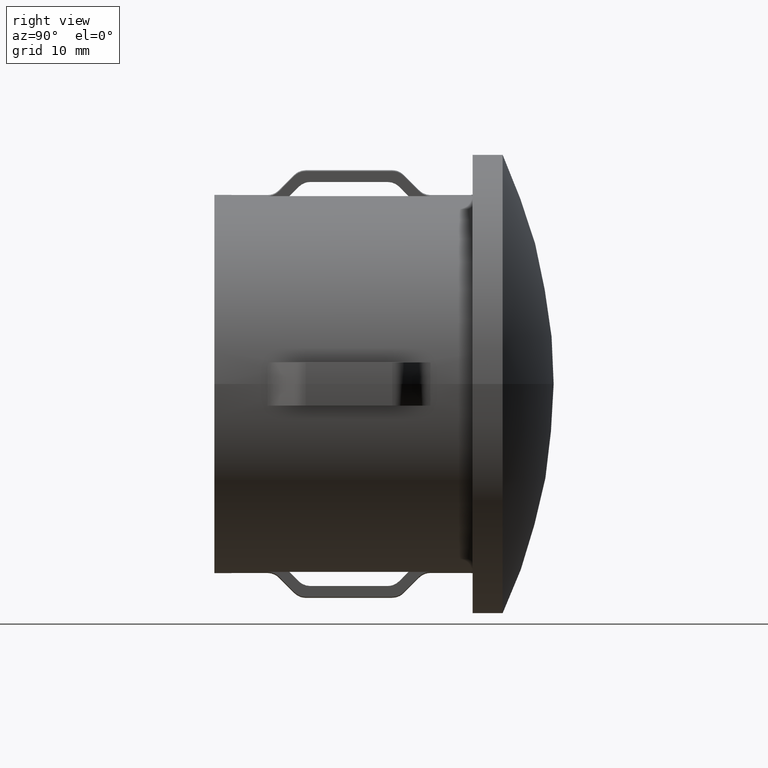
[diagram: clean part render]
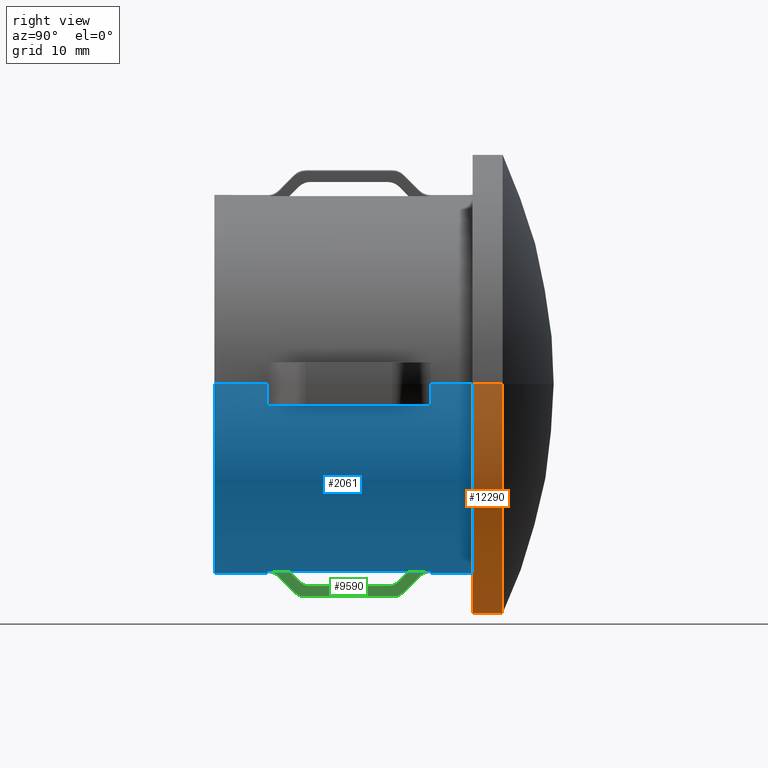
[diagram: same view with three faces highlighted in distinct colors, each labeled with its STEP entity id]
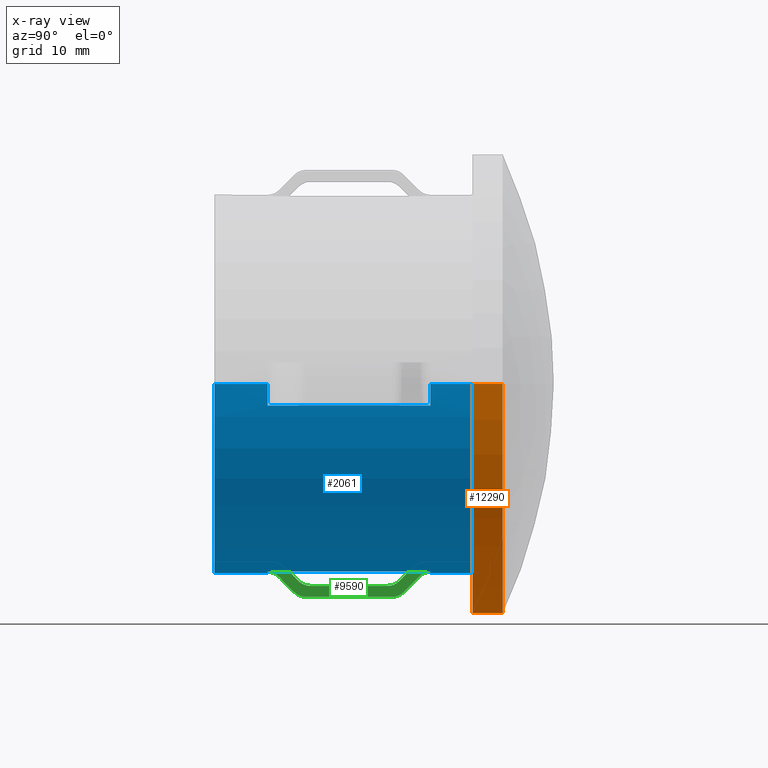
[diagram: x-ray of the same camera — body ghosted, the three highlighted faces saturated]
A machine part, right view with three faces highlighted in distinct colors.
The next image is the same camera in x-ray (body ghosted, the three faces saturated) — at least one of them is partly hidden behind the body in this view.
Their STEP definitions:

[orange] entity #12290 — the highlighted cylindrical surface (partial cylindrical patch) has radius 21.2 mm, axis along (-0, -1, -0).
#14 = VERTEX_POINT ( 'NONE', #12930 ) ;
#597 = DIRECTION ( 'NONE',  ( -2.904862207577519400E-015, -1.000000000000000000, -0.0000000000000000000 ) ) ;
#705 = DIRECTION ( 'NONE',  ( -2.904862207577519400E-015, -1.000000000000000000, -0.0000000000000000000 ) ) ;
#948 = ORIENTED_EDGE ( 'NONE', *, *, #11387, .F. ) ;
#1653 = ORIENTED_EDGE ( 'NONE', *, *, #2786, .T. ) ;
#1758 = VECTOR ( 'NONE', #11322, 1000.000000000000000 ) ;
#1781 = ORIENTED_EDGE ( 'NONE', *, *, #2001, .F. ) ;
#1859 = CARTESIAN_POINT ( 'NONE',  ( -21.20000000000001400, 28.90000000000005900, 2.596251214192390700E-015 ) ) ;
#2001 = EDGE_CURVE ( 'NONE', #13172, #9266, #14254, .T. ) ;
#2524 = DIRECTION ( 'NONE',  ( 1.000000000000000000, -2.945756845998349800E-015, 0.0000000000000000000 ) ) ;
#2532 = CIRCLE ( 'NONE', #10851, 21.20000000000001000 ) ;
#2786 = EDGE_CURVE ( 'NONE', #6906, #14, #2532, .T. ) ;
#3676 = LINE ( 'NONE', #1859, #4359 ) ;
#3825 = DIRECTION ( 'NONE',  ( -2.904862207577519400E-015, -1.000000000000000000, -0.0000000000000000000 ) ) ;
#4215 = CARTESIAN_POINT ( 'NONE',  ( -21.19999999999990000, 23.90658772472814800, 2.596251214192391900E-015 ) ) ;
#4359 = VECTOR ( 'NONE', #705, 1000.000000000000000 ) ;
#4437 = AXIS2_PLACEMENT_3D ( 'NONE', #4639, #10024, #2524 ) ;
#4639 = CARTESIAN_POINT ( 'NONE',  ( 0.0000000000000000000, 28.89999999999999500, 0.0000000000000000000 ) ) ;
#4826 = EDGE_CURVE ( 'NONE', #14, #9266, #9162, .T. ) ;
#6061 = CARTESIAN_POINT ( 'NONE',  ( -1.450517460529105200E-014, 23.90658772472808400, 0.0000000000000000000 ) ) ;
#6273 = CARTESIAN_POINT ( 'NONE',  ( -21.19999999999988600, 26.68310943387181300, 2.596251214192390300E-015 ) ) ;
#6906 = VERTEX_POINT ( 'NONE', #6273 ) ;
#7882 = ORIENTED_EDGE ( 'NONE', *, *, #4826, .T. ) ;
#8685 = EDGE_LOOP ( 'NONE', ( #948, #1653, #7882, #1781 ) ) ;
#9162 = LINE ( 'NONE', #10307, #1758 ) ;
#9223 = DIRECTION ( 'NONE',  ( 1.000000000000000000, -2.945756845998350200E-015, 0.0000000000000000000 ) ) ;
#9266 = VERTEX_POINT ( 'NONE', #9813 ) ;
#9813 = CARTESIAN_POINT ( 'NONE',  ( 21.20000000000001000, 23.90658772472802000, 0.0000000000000000000 ) ) ;
#10024 = DIRECTION ( 'NONE',  ( -2.904862207577519400E-015, -1.000000000000000000, -0.0000000000000000000 ) ) ;
#10307 = CARTESIAN_POINT ( 'NONE',  ( 21.20000000000001400, 28.89999999999993100, 0.0000000000000000000 ) ) ;
#10412 = CARTESIAN_POINT ( 'NONE',  ( -6.439761623881060800E-015, 26.68310943387175600, 0.0000000000000000000 ) ) ;
#10443 = DIRECTION ( 'NONE',  ( 1.000000000000000000, -2.945756845998349400E-015, 0.0000000000000000000 ) ) ;
#10851 = AXIS2_PLACEMENT_3D ( 'NONE', #10412, #3825, #9223 ) ;
#11050 = CYLINDRICAL_SURFACE ( 'NONE', #4437, 21.20000000000001400 ) ;
#11322 = DIRECTION ( 'NONE',  ( -2.904862207577519400E-015, -1.000000000000000000, -0.0000000000000000000 ) ) ;
#11387 = EDGE_CURVE ( 'NONE', #6906, #13172, #3676, .T. ) ;
#12204 = AXIS2_PLACEMENT_3D ( 'NONE', #6061, #597, #10443 ) ;
#12290 = ADVANCED_FACE ( 'NONE', ( #13977 ), #11050, .T. ) ;
#12930 = CARTESIAN_POINT ( 'NONE',  ( 21.20000000000000300, 26.68310943387169200, 0.0000000000000000000 ) ) ;
#13172 = VERTEX_POINT ( 'NONE', #4215 ) ;
#13977 = FACE_OUTER_BOUND ( 'NONE', #8685, .T. ) ;
#14254 = CIRCLE ( 'NONE', #12204, 21.20000000000001700 ) ;

[blue] entity #2061 — the highlighted cylindrical surface (partial cylindrical patch) has radius 17.5 mm, axis along (-0, -1, -0).
#53 = EDGE_CURVE ( 'NONE', #2744, #3036, #2293, .T. ) ;
#281 = CARTESIAN_POINT ( 'NONE',  ( -17.38533865071388000, 4.914718625761423700, -2.000000000000005800 ) ) ;
#439 = CARTESIAN_POINT ( 'NONE',  ( 2.000000000000001300, 4.914718625761423700, -17.38533865071378400 ) ) ;
#487 = EDGE_CURVE ( 'NONE', #1915, #695, #4869, .T. ) ;
#521 = EDGE_CURVE ( 'NONE', #2857, #12632, #8651, .T. ) ;
#695 = VERTEX_POINT ( 'NONE', #13203 ) ;
#732 = VECTOR ( 'NONE', #6707, 1000.000000000000000 ) ;
#752 = CARTESIAN_POINT ( 'NONE',  ( -17.50000000000014200, 4.914718625761526700, 2.143131898507881300E-015 ) ) ;
#776 = DIRECTION ( 'NONE',  ( -2.449293598294745400E-017, -1.000000000000000000, -0.0000000000000000000 ) ) ;
#879 = DIRECTION ( 'NONE',  ( -2.904862207577519400E-015, -1.000000000000000000, -0.0000000000000000000 ) ) ;
#965 = DIRECTION ( 'NONE',  ( 1.000000000000000000, -2.904862207577519400E-015, 0.0000000000000000000 ) ) ;
#1030 = CARTESIAN_POINT ( 'NONE',  ( 17.38533865071371300, 20.00000000000000000, -2.000000000000006200 ) ) ;
#1159 = VERTEX_POINT ( 'NONE', #9234 ) ;
#1271 = EDGE_CURVE ( 'NONE', #1365, #10079, #7248, .T. ) ;
#1320 = CIRCLE ( 'NONE', #7006, 17.50000000000007100 ) ;
#1342 = AXIS2_PLACEMENT_3D ( 'NONE', #7775, #8730, #5547 ) ;
#1365 = VERTEX_POINT ( 'NONE', #10041 ) ;
#1431 = LINE ( 'NONE', #13343, #732 ) ;
#1540 = ORIENTED_EDGE ( 'NONE', *, *, #13140, .T. ) ;
#1617 = CARTESIAN_POINT ( 'NONE',  ( 2.000000000000001800, 20.00000000000000000, -17.38533865071378400 ) ) ;
#1662 = ORIENTED_EDGE ( 'NONE', *, *, #5024, .F. ) ;
#1713 = EDGE_CURVE ( 'NONE', #3448, #3152, #8899, .T. ) ;
#1741 = LINE ( 'NONE', #8511, #3289 ) ;
#1883 = VERTEX_POINT ( 'NONE', #8430 ) ;
#1915 = VERTEX_POINT ( 'NONE', #1987 ) ;
#1916 = DIRECTION ( 'NONE',  ( -2.449293598294745400E-017, -1.000000000000000000, 0.0000000000000000000 ) ) ;
#1936 = DIRECTION ( 'NONE',  ( 1.000000000000000000, -2.973811673103095000E-015, 0.0000000000000000000 ) ) ;
#1941 = VECTOR ( 'NONE', #6380, 1000.000000000000000 ) ;
#1979 = CARTESIAN_POINT ( 'NONE',  ( -1.999999999999997300, 20.00000000000000000, -17.38533865071380500 ) ) ;
#1987 = CARTESIAN_POINT ( 'NONE',  ( -1.999999999999997300, 20.00000000000000000, -17.38533865071380500 ) ) ;
#2061 = ADVANCED_FACE ( 'NONE', ( #4085, #11471 ), #11987, .T. ) ;
#2286 = LINE ( 'NONE', #12194, #5886 ) ;
#2293 = LINE ( 'NONE', #1979, #6049 ) ;
#2356 = VERTEX_POINT ( 'NONE', #281 ) ;
#2466 = LINE ( 'NONE', #1030, #12261 ) ;
#2564 = DIRECTION ( 'NONE',  ( -2.449293598294745400E-017, -1.000000000000000000, 0.0000000000000000000 ) ) ;
#2579 = AXIS2_PLACEMENT_3D ( 'NONE', #3982, #6187, #8369 ) ;
#2602 = CARTESIAN_POINT ( 'NONE',  ( -17.38533865071388000, 20.00000000000000000, -2.000000000000005800 ) ) ;
#2606 = VECTOR ( 'NONE', #1916, 1000.000000000000000 ) ;
#2609 = CARTESIAN_POINT ( 'NONE',  ( -6.967393740213846900E-014, 4.914718625761476100, 0.0000000000000000000 ) ) ;
#2744 = VERTEX_POINT ( 'NONE', #3648 ) ;
#2856 = EDGE_CURVE ( 'NONE', #10079, #1159, #8727, .T. ) ;
#2857 = VERTEX_POINT ( 'NONE', #13645 ) ;
#2919 = VERTEX_POINT ( 'NONE', #752 ) ;
#3025 = CARTESIAN_POINT ( 'NONE',  ( 17.50000000000000000, 1.206615646697376900E-015, 0.0000000000000000000 ) ) ;
#3036 = VERTEX_POINT ( 'NONE', #14222 ) ;
#3105 = CARTESIAN_POINT ( 'NONE',  ( -8.395051779899014400E-014, 5.204170427930421300E-014, 0.0000000000000000000 ) ) ;
#3152 = VERTEX_POINT ( 'NONE', #6853 ) ;
#3273 = EDGE_CURVE ( 'NONE', #6647, #2857, #1320, .T. ) ;
#3289 = VECTOR ( 'NONE', #13894, 1000.000000000000000 ) ;
#3448 = VERTEX_POINT ( 'NONE', #7069 ) ;
#3559 = EDGE_CURVE ( 'NONE', #11614, #14031, #13866, .T. ) ;
#3568 = AXIS2_PLACEMENT_3D ( 'NONE', #3927, #13830, #6128 ) ;
#3648 = CARTESIAN_POINT ( 'NONE',  ( -1.999999999999997800, 6.950252531694237800, -17.38533865071380500 ) ) ;
#3721 = DIRECTION ( 'NONE',  ( 1.000000000000000000, -2.924248145218034500E-015, 0.0000000000000000000 ) ) ;
#3796 = ORIENTED_EDGE ( 'NONE', *, *, #1713, .F. ) ;
#3838 = VECTOR ( 'NONE', #2564, 1000.000000000000000 ) ;
#3843 = CIRCLE ( 'NONE', #3568, 17.50000000000000400 ) ;
#3927 = CARTESIAN_POINT ( 'NONE',  ( -9.705713025142736400E-015, 25.55880433163928700, 0.0000000000000000000 ) ) ;
#3981 = CARTESIAN_POINT ( 'NONE',  ( 2.000000000000001800, 20.00000000000000000, -17.38533865071378400 ) ) ;
#3982 = CARTESIAN_POINT ( 'NONE',  ( -2.585327364743976200E-014, 20.00000000000005300, 0.0000000000000000000 ) ) ;
#4085 = FACE_OUTER_BOUND ( 'NONE', #6709, .T. ) ;
#4111 = EDGE_CURVE ( 'NONE', #2919, #1883, #2286, .T. ) ;
#4146 = DIRECTION ( 'NONE',  ( -2.904862207577519400E-015, -1.000000000000000000, -0.0000000000000000000 ) ) ;
#4192 = ORIENTED_EDGE ( 'NONE', *, *, #8361, .F. ) ;
#4238 = CIRCLE ( 'NONE', #14102, 17.50000000000008500 ) ;
#4439 = DIRECTION ( 'NONE',  ( -2.449293598294745400E-017, -1.000000000000000000, -0.0000000000000000000 ) ) ;
#4465 = EDGE_CURVE ( 'NONE', #14064, #2356, #10706, .T. ) ;
#4541 = ORIENTED_EDGE ( 'NONE', *, *, #10116, .T. ) ;
#4575 = EDGE_CURVE ( 'NONE', #1159, #7571, #1431, .T. ) ;
#4720 = CARTESIAN_POINT ( 'NONE',  ( 17.50000000000007800, 28.89999999999994200, 0.0000000000000000000 ) ) ;
#4792 = AXIS2_PLACEMENT_3D ( 'NONE', #5349, #879, #14204 ) ;
#4869 = LINE ( 'NONE', #6230, #1941 ) ;
#5024 = EDGE_CURVE ( 'NONE', #3152, #9989, #1741, .T. ) ;
#5075 = DIRECTION ( 'NONE',  ( -2.904862207577519400E-015, -1.000000000000000000, -0.0000000000000000000 ) ) ;
#5250 = ORIENTED_EDGE ( 'NONE', *, *, #3273, .T. ) ;
#5349 = CARTESIAN_POINT ( 'NONE',  ( -6.967393740213846900E-014, 4.914718625761476100, 0.0000000000000000000 ) ) ;
#5400 = VECTOR ( 'NONE', #6001, 1000.000000000000000 ) ;
#5536 = LINE ( 'NONE', #9458, #2606 ) ;
#5547 = DIRECTION ( 'NONE',  ( 1.000000000000000000, -2.924248145218034500E-015, 0.0000000000000000000 ) ) ;
#5615 = DIRECTION ( 'NONE',  ( -2.904862207577519400E-015, -1.000000000000000000, -0.0000000000000000000 ) ) ;
#5701 = CARTESIAN_POINT ( 'NONE',  ( 17.38533865071371300, 20.00000000000000000, -2.000000000000006200 ) ) ;
#5722 = DIRECTION ( 'NONE',  ( -2.904862207577519400E-015, -1.000000000000000000, -0.0000000000000000000 ) ) ;
#5846 = ORIENTED_EDGE ( 'NONE', *, *, #6336, .F. ) ;
#5886 = VECTOR ( 'NONE', #5615, 1000.000000000000000 ) ;
#6001 = DIRECTION ( 'NONE',  ( -2.904862207577519400E-015, -1.000000000000000000, -0.0000000000000000000 ) ) ;
#6006 = ORIENTED_EDGE ( 'NONE', *, *, #8165, .T. ) ;
#6040 = VECTOR ( 'NONE', #6430, 1000.000000000000000 ) ;
#6049 = VECTOR ( 'NONE', #776, 1000.000000000000000 ) ;
#6128 = DIRECTION ( 'NONE',  ( 1.000000000000000000, -2.973811673103097400E-015, 0.0000000000000000000 ) ) ;
#6187 = DIRECTION ( 'NONE',  ( -2.904862207577519400E-015, -1.000000000000000000, -0.0000000000000000000 ) ) ;
#6225 = LINE ( 'NONE', #7228, #8819 ) ;
#6230 = CARTESIAN_POINT ( 'NONE',  ( -1.999999999999997300, 20.00000000000000000, -17.38533865071380500 ) ) ;
#6336 = EDGE_CURVE ( 'NONE', #1915, #1365, #9218, .T. ) ;
#6380 = DIRECTION ( 'NONE',  ( -2.449293598294745400E-017, -1.000000000000000000, -0.0000000000000000000 ) ) ;
#6430 = DIRECTION ( 'NONE',  ( -2.449293598294745400E-017, -1.000000000000000000, 0.0000000000000000000 ) ) ;
#6518 = ORIENTED_EDGE ( 'NONE', *, *, #11111, .F. ) ;
#6524 = ORIENTED_EDGE ( 'NONE', *, *, #11568, .T. ) ;
#6581 = CARTESIAN_POINT ( 'NONE',  ( 2.000000000000001800, 17.96446609406721300, -17.38533865071378400 ) ) ;
#6647 = VERTEX_POINT ( 'NONE', #8098 ) ;
#6707 = DIRECTION ( 'NONE',  ( -2.449293598294745400E-017, -1.000000000000000000, -0.0000000000000000000 ) ) ;
#6709 = EDGE_LOOP ( 'NONE', ( #4192, #4541, #9160, #9441, #9640, #12988, #10571, #5250, #8250, #6518, #10823, #6006, #11776, #9175, #1662, #3796 ) ) ;
#6853 = CARTESIAN_POINT ( 'NONE',  ( -17.38533865071375200, 20.00000000000010300, -2.000000000000006200 ) ) ;
#6876 = VERTEX_POINT ( 'NONE', #9807 ) ;
#6944 = DIRECTION ( 'NONE',  ( -2.904862207577519400E-015, -1.000000000000000000, -0.0000000000000000000 ) ) ;
#6961 = LINE ( 'NONE', #5701, #8000 ) ;
#7006 = AXIS2_PLACEMENT_3D ( 'NONE', #2609, #6944, #3721 ) ;
#7069 = CARTESIAN_POINT ( 'NONE',  ( -17.50000000000004300, 20.00000000000010300, 2.143131898507875000E-015 ) ) ;
#7228 = CARTESIAN_POINT ( 'NONE',  ( 17.50000000000007800, 28.89999999999994200, 0.0000000000000000000 ) ) ;
#7248 = LINE ( 'NONE', #3981, #10868 ) ;
#7331 = CARTESIAN_POINT ( 'NONE',  ( 0.0000000000000000000, 28.89999999999999500, 0.0000000000000000000 ) ) ;
#7376 = CARTESIAN_POINT ( 'NONE',  ( -2.585327364743976200E-014, 20.00000000000005300, 0.0000000000000000000 ) ) ;
#7402 = DIRECTION ( 'NONE',  ( -2.449293598294745400E-017, -1.000000000000000000, -0.0000000000000000000 ) ) ;
#7571 = VERTEX_POINT ( 'NONE', #439 ) ;
#7775 = CARTESIAN_POINT ( 'NONE',  ( -6.967393740213846900E-014, 4.914718625761476100, 0.0000000000000000000 ) ) ;
#7799 = VECTOR ( 'NONE', #14270, 1000.000000000000000 ) ;
#7833 = LINE ( 'NONE', #2602, #3838 ) ;
#7914 = EDGE_LOOP ( 'NONE', ( #9395, #6524, #12945, #11916, #10432, #5846, #11066, #1540 ) ) ;
#8000 = VECTOR ( 'NONE', #11177, 1000.000000000000000 ) ;
#8098 = CARTESIAN_POINT ( 'NONE',  ( 17.38533865071371300, 4.914718625761423700, -2.000000000000006200 ) ) ;
#8165 = EDGE_CURVE ( 'NONE', #2919, #2356, #11262, .T. ) ;
#8172 = VERTEX_POINT ( 'NONE', #14217 ) ;
#8250 = ORIENTED_EDGE ( 'NONE', *, *, #521, .T. ) ;
#8324 = EDGE_CURVE ( 'NONE', #9989, #14064, #7833, .T. ) ;
#8361 = EDGE_CURVE ( 'NONE', #6876, #3448, #10217, .T. ) ;
#8369 = DIRECTION ( 'NONE',  ( 1.000000000000000000, -2.973811673103095000E-015, 0.0000000000000000000 ) ) ;
#8430 = CARTESIAN_POINT ( 'NONE',  ( -17.50000000000016700, 1.028767929119110500E-013, 2.143131898507882800E-015 ) ) ;
#8511 = CARTESIAN_POINT ( 'NONE',  ( -17.38533865071388000, 20.00000000000000000, -2.000000000000005800 ) ) ;
#8587 = CARTESIAN_POINT ( 'NONE',  ( -17.38533865071388000, 20.00000000000000000, -2.000000000000005800 ) ) ;
#8605 = DIRECTION ( 'NONE',  ( -2.904862207577519400E-015, -1.000000000000000000, -0.0000000000000000000 ) ) ;
#8651 = LINE ( 'NONE', #4720, #12431 ) ;
#8718 = CARTESIAN_POINT ( 'NONE',  ( 17.38533865071371300, 20.00000000000000000, -2.000000000000006200 ) ) ;
#8727 = LINE ( 'NONE', #1617, #12491 ) ;
#8730 = DIRECTION ( 'NONE',  ( -2.904862207577519400E-015, -1.000000000000000000, -0.0000000000000000000 ) ) ;
#8804 = AXIS2_PLACEMENT_3D ( 'NONE', #12803, #5075, #10644 ) ;
#8819 = VECTOR ( 'NONE', #9396, 1000.000000000000000 ) ;
#8899 = CIRCLE ( 'NONE', #8804, 17.50000000000001800 ) ;
#9160 = ORIENTED_EDGE ( 'NONE', *, *, #12008, .T. ) ;
#9175 = ORIENTED_EDGE ( 'NONE', *, *, #8324, .F. ) ;
#9218 = CIRCLE ( 'NONE', #9658, 17.50000000000001800 ) ;
#9234 = CARTESIAN_POINT ( 'NONE',  ( 2.000000000000001300, 6.950252531694277800, -17.38533865071378400 ) ) ;
#9395 = ORIENTED_EDGE ( 'NONE', *, *, #53, .T. ) ;
#9396 = DIRECTION ( 'NONE',  ( -2.904862207577519400E-015, -1.000000000000000000, -0.0000000000000000000 ) ) ;
#9441 = ORIENTED_EDGE ( 'NONE', *, *, #3559, .F. ) ;
#9458 = CARTESIAN_POINT ( 'NONE',  ( 17.38533865071371300, 20.00000000000000000, -2.000000000000006200 ) ) ;
#9541 = EDGE_CURVE ( 'NONE', #11614, #11843, #6961, .T. ) ;
#9640 = ORIENTED_EDGE ( 'NONE', *, *, #9541, .T. ) ;
#9658 = AXIS2_PLACEMENT_3D ( 'NONE', #7376, #4146, #1936 ) ;
#9807 = CARTESIAN_POINT ( 'NONE',  ( -17.50000000000001400, 25.55880433163933700, 2.369691556350132100E-015 ) ) ;
#9989 = VERTEX_POINT ( 'NONE', #13851 ) ;
#10041 = CARTESIAN_POINT ( 'NONE',  ( 2.000000000000002700, 20.00000000000004600, -17.38533865071372700 ) ) ;
#10079 = VERTEX_POINT ( 'NONE', #6581 ) ;
#10116 = EDGE_CURVE ( 'NONE', #6876, #12904, #3843, .T. ) ;
#10217 = LINE ( 'NONE', #13575, #5400 ) ;
#10328 = DIRECTION ( 'NONE',  ( -2.449293598294745400E-017, -1.000000000000000000, 0.0000000000000000000 ) ) ;
#10432 = ORIENTED_EDGE ( 'NONE', *, *, #1271, .F. ) ;
#10571 = ORIENTED_EDGE ( 'NONE', *, *, #10740, .T. ) ;
#10644 = DIRECTION ( 'NONE',  ( 1.000000000000000000, -2.973811673103095000E-015, 0.0000000000000000000 ) ) ;
#10706 = LINE ( 'NONE', #8587, #7799 ) ;
#10740 = EDGE_CURVE ( 'NONE', #8172, #6647, #2466, .T. ) ;
#10823 = ORIENTED_EDGE ( 'NONE', *, *, #4111, .F. ) ;
#10868 = VECTOR ( 'NONE', #7402, 1000.000000000000000 ) ;
#11066 = ORIENTED_EDGE ( 'NONE', *, *, #487, .T. ) ;
#11111 = EDGE_CURVE ( 'NONE', #1883, #12632, #4238, .T. ) ;
#11177 = DIRECTION ( 'NONE',  ( -2.449293598294745400E-017, -1.000000000000000000, -0.0000000000000000000 ) ) ;
#11262 = CIRCLE ( 'NONE', #1342, 17.50000000000007100 ) ;
#11326 = AXIS2_PLACEMENT_3D ( 'NONE', #7331, #12691, #13814 ) ;
#11471 = FACE_BOUND ( 'NONE', #7914, .T. ) ;
#11568 = EDGE_CURVE ( 'NONE', #3036, #7571, #12946, .T. ) ;
#11614 = VERTEX_POINT ( 'NONE', #8718 ) ;
#11776 = ORIENTED_EDGE ( 'NONE', *, *, #4465, .F. ) ;
#11843 = VERTEX_POINT ( 'NONE', #12147 ) ;
#11916 = ORIENTED_EDGE ( 'NONE', *, *, #2856, .F. ) ;
#11947 = CARTESIAN_POINT ( 'NONE',  ( 17.49999999999999600, 20.00000000000000000, 0.0000000000000000000 ) ) ;
#11987 = CYLINDRICAL_SURFACE ( 'NONE', #11326, 17.50000000000007800 ) ;
#12008 = EDGE_CURVE ( 'NONE', #12904, #14031, #6225, .T. ) ;
#12147 = CARTESIAN_POINT ( 'NONE',  ( 17.38533865071371300, 17.96446609406726600, -2.000000000000006200 ) ) ;
#12194 = CARTESIAN_POINT ( 'NONE',  ( -17.50000000000007800, 28.90000000000004800, 2.143131898507877700E-015 ) ) ;
#12261 = VECTOR ( 'NONE', #4439, 1000.000000000000000 ) ;
#12431 = VECTOR ( 'NONE', #5722, 1000.000000000000000 ) ;
#12491 = VECTOR ( 'NONE', #10328, 1000.000000000000000 ) ;
#12632 = VERTEX_POINT ( 'NONE', #3025 ) ;
#12691 = DIRECTION ( 'NONE',  ( -2.904862207577519400E-015, -1.000000000000000000, -0.0000000000000000000 ) ) ;
#12803 = CARTESIAN_POINT ( 'NONE',  ( -2.585327364743976200E-014, 20.00000000000005300, 0.0000000000000000000 ) ) ;
#12904 = VERTEX_POINT ( 'NONE', #13603 ) ;
#12945 = ORIENTED_EDGE ( 'NONE', *, *, #4575, .F. ) ;
#12946 = CIRCLE ( 'NONE', #4792, 17.50000000000007100 ) ;
#12988 = ORIENTED_EDGE ( 'NONE', *, *, #13901, .T. ) ;
#13140 = EDGE_CURVE ( 'NONE', #695, #2744, #13454, .T. ) ;
#13203 = CARTESIAN_POINT ( 'NONE',  ( -1.999999999999997300, 17.96446609406726600, -17.38533865071380500 ) ) ;
#13304 = CARTESIAN_POINT ( 'NONE',  ( -17.38533865071388000, 6.950252531694277800, -2.000000000000005800 ) ) ;
#13343 = CARTESIAN_POINT ( 'NONE',  ( 2.000000000000001800, 20.00000000000000000, -17.38533865071378400 ) ) ;
#13454 = LINE ( 'NONE', #14082, #6040 ) ;
#13575 = CARTESIAN_POINT ( 'NONE',  ( -17.50000000000007800, 28.90000000000004800, 2.143131898507877700E-015 ) ) ;
#13603 = CARTESIAN_POINT ( 'NONE',  ( 17.49999999999999600, 25.55880433163923400, 0.0000000000000000000 ) ) ;
#13645 = CARTESIAN_POINT ( 'NONE',  ( 17.50000000000000000, 4.914718625761424600, 0.0000000000000000000 ) ) ;
#13814 = DIRECTION ( 'NONE',  ( 1.000000000000000000, -2.973811673103084700E-015, 0.0000000000000000000 ) ) ;
#13830 = DIRECTION ( 'NONE',  ( -2.904862207577519400E-015, -1.000000000000000000, -0.0000000000000000000 ) ) ;
#13851 = CARTESIAN_POINT ( 'NONE',  ( -17.38533865071388000, 17.96446609406721300, -2.000000000000005800 ) ) ;
#13866 = CIRCLE ( 'NONE', #2579, 17.50000000000001800 ) ;
#13894 = DIRECTION ( 'NONE',  ( -2.449293598294745400E-017, -1.000000000000000000, -0.0000000000000000000 ) ) ;
#13901 = EDGE_CURVE ( 'NONE', #11843, #8172, #5536, .T. ) ;
#14031 = VERTEX_POINT ( 'NONE', #11947 ) ;
#14064 = VERTEX_POINT ( 'NONE', #13304 ) ;
#14082 = CARTESIAN_POINT ( 'NONE',  ( -1.999999999999997300, 20.00000000000000000, -17.38533865071380500 ) ) ;
#14102 = AXIS2_PLACEMENT_3D ( 'NONE', #3105, #8605, #965 ) ;
#14204 = DIRECTION ( 'NONE',  ( 1.000000000000000000, -2.924248145218034500E-015, 0.0000000000000000000 ) ) ;
#14217 = CARTESIAN_POINT ( 'NONE',  ( 17.38533865071371300, 6.950252531694160600, -2.000000000000006200 ) ) ;
#14222 = CARTESIAN_POINT ( 'NONE',  ( -1.999999999999997800, 4.914718625761423700, -17.38533865071380500 ) ) ;
#14270 = DIRECTION ( 'NONE',  ( -2.449293598294745400E-017, -1.000000000000000000, -0.0000000000000000000 ) ) ;

[green] entity #9590 — the highlighted planar face has unit normal (-1, 0, -0).
#13 = CARTESIAN_POINT ( 'NONE',  ( 2.000000000000001300, 6.986305481410751900, -17.42162938008726800 ) ) ;
#15 = CARTESIAN_POINT ( 'NONE',  ( 2.000000000000002700, 20.00000000000004600, -17.38533865071372700 ) ) ;
#51 = CARTESIAN_POINT ( 'NONE',  ( 2.000000000000001300, 6.950252531694277800, -17.38533865071378400 ) ) ;
#143 = EDGE_CURVE ( 'NONE', #7345, #8681, #12741, .T. ) ;
#169 = CARTESIAN_POINT ( 'NONE',  ( 2.000000000000001300, 5.307255492531319300, -17.42454143816081900 ) ) ;
#198 = DIRECTION ( 'NONE',  ( -2.449293598294745400E-017, -1.000000000000000000, -0.0000000000000000000 ) ) ;
#365 = CARTESIAN_POINT ( 'NONE',  ( 2.000000000000001800, 5.111921298075495600, -17.38533865071376600 ) ) ;
#439 = CARTESIAN_POINT ( 'NONE',  ( 2.000000000000001300, 4.914718625761423700, -17.38533865071378400 ) ) ;
#489 = CARTESIAN_POINT ( 'NONE',  ( 2.000000000000001800, 7.396699141100938000, -19.25708083503685200 ) ) ;
#623 = CARTESIAN_POINT ( 'NONE',  ( 2.000000000000001300, 16.23845352864968200, -18.69331431287670900 ) ) ;
#650 = CARTESIAN_POINT ( 'NONE',  ( 2.000000000000001800, 8.457359312880761600, -19.69873092359004800 ) ) ;
#732 = VECTOR ( 'NONE', #6707, 1000.000000000000000 ) ;
#795 = VERTEX_POINT ( 'NONE', #4323 ) ;
#803 = CARTESIAN_POINT ( 'NONE',  ( 2.000000000000002200, 16.45735931288071200, -19.69873092359004800 ) ) ;
#886 = CARTESIAN_POINT ( 'NONE',  ( 2.000000000000001300, 7.949531508099165800, -18.39085515632347500 ) ) ;
#895 = CARTESIAN_POINT ( 'NONE',  ( 2.000000000000001800, 17.51801948466578600, -19.25708083504088100 ) ) ;
#1025 = B_SPLINE_CURVE_WITH_KNOTS ( 'NONE', 3,
 ( #5477, #4367, #13174, #6576, #12048, #15 ),
 .UNSPECIFIED., .F., .F.,
 ( 4, 2, 4 ),
 ( 0.009288462586615847000, 0.009874882560755866800, 0.01046130253489588500 ),
 .UNSPECIFIED. ) ;
#1068 = CARTESIAN_POINT ( 'NONE',  ( 2.000000000000001300, 8.064259311178721700, -19.65921881202385200 ) ) ;
#1104 = EDGE_CURVE ( 'NONE', #7571, #10840, #4912, .T. ) ;
#1125 = ORIENTED_EDGE ( 'NONE', *, *, #5288, .T. ) ;
#1159 = VERTEX_POINT ( 'NONE', #9234 ) ;
#1220 = CARTESIAN_POINT ( 'NONE',  ( 2.000000000000001800, 17.51801948466578600, -19.25708083504088100 ) ) ;
#1270 = EDGE_CURVE ( 'NONE', #1555, #12475, #8280, .T. ) ;
#1271 = EDGE_CURVE ( 'NONE', #1365, #10079, #7248, .T. ) ;
#1298 = CARTESIAN_POINT ( 'NONE',  ( 2.000000000000001300, 7.058413593263120200, -17.49420864086609500 ) ) ;
#1317 = CARTESIAN_POINT ( 'NONE',  ( 2.000000000000001300, 5.975378797541287300, -17.82750440954563200 ) ) ;
#1365 = VERTEX_POINT ( 'NONE', #10041 ) ;
#1431 = LINE ( 'NONE', #13343, #732 ) ;
#1469 = B_SPLINE_CURVE_WITH_KNOTS ( 'NONE', 3,
 ( #3760, #9323, #5871, #4778, #8107, #12583, #489 ),
 .UNSPECIFIED., .F., .F.,
 ( 4, 3, 4 ),
 ( 0.003840700187215000700, 0.004653157968243741900, 0.005856596785993221400 ),
 .UNSPECIFIED. ) ;
#1477 = CARTESIAN_POINT ( 'NONE',  ( 1.999999999999999100, 20.00000000000000000, 2.940420107180653000E-016 ) ) ;
#1491 = ORIENTED_EDGE ( 'NONE', *, *, #1104, .T. ) ;
#1516 = PLANE ( 'NONE',  #13698 ) ;
#1555 = VERTEX_POINT ( 'NONE', #2619 ) ;
#1561 = LINE ( 'NONE', #12091, #11700 ) ;
#1709 = EDGE_CURVE ( 'NONE', #10814, #9575, #3683, .T. ) ;
#1821 = CARTESIAN_POINT ( 'NONE',  ( 2.000000000000001800, 16.65527531074436900, -19.69873092359001300 ) ) ;
#1950 = CARTESIAN_POINT ( 'NONE',  ( 2.000000000000001800, 17.60081102466014300, -19.17384397869496100 ) ) ;
#1969 = B_SPLINE_CURVE_WITH_KNOTS ( 'NONE', 3,
 ( #12240, #8884, #6770, #1298, #11144, #13, #51 ),
 .UNSPECIFIED., .F., .F.,
 ( 4, 3, 4 ),
 ( 0.002250251092195981700, 0.003317773246907190400, 0.003471238184309808900 ),
 .UNSPECIFIED. ) ;
#2111 = VERTEX_POINT ( 'NONE', #11691 ) ;
#2176 = CARTESIAN_POINT ( 'NONE',  ( 2.000000000000001300, 7.536343732910655300, -19.39747654246597400 ) ) ;
#2619 = CARTESIAN_POINT ( 'NONE',  ( 2.000000000000001800, 17.10380592228748900, -18.25140657438716500 ) ) ;
#2700 = B_SPLINE_CURVE_WITH_KNOTS ( 'NONE', 3,
 ( #8096, #1821, #13848, #10518, #5099, #12492 ),
 .UNSPECIFIED., .F., .F.,
 ( 4, 2, 4 ),
 ( 0.009086874778833423100, 0.009672906761034386800, 0.01025893874323535200 ),
 .UNSPECIFIED. ) ;
#2747 = DIRECTION ( 'NONE',  ( -1.000000000000000000, 2.449293598294745400E-017, -1.470210053590327500E-016 ) ) ;
#2906 = CARTESIAN_POINT ( 'NONE',  ( 2.000000000000001800, 17.25939048702845500, -18.09488264283585600 ) ) ;
#3682 = CARTESIAN_POINT ( 'NONE',  ( 2.000000000000001800, 18.93933982822022700, -17.82750440954559700 ) ) ;
#3683 = B_SPLINE_CURVE_WITH_KNOTS ( 'NONE', 3,
 ( #895, #1950, #10695, #7388, #4068, #10602, #5126 ),
 .UNSPECIFIED., .F., .F.,
 ( 4, 3, 4 ),
 ( 0.004300956749560309500, 0.004653157407117015200, 0.006316853632494998100 ),
 .UNSPECIFIED. ) ;
#3747 = EDGE_CURVE ( 'NONE', #2111, #1159, #1969, .T. ) ;
#3760 = CARTESIAN_POINT ( 'NONE',  ( 2.000000000000001300, 5.975378797541287300, -17.82750440954563200 ) ) ;
#3790 = ORIENTED_EDGE ( 'NONE', *, *, #143, .T. ) ;
#3981 = CARTESIAN_POINT ( 'NONE',  ( 2.000000000000001800, 20.00000000000000000, -17.38533865071378400 ) ) ;
#4020 = CARTESIAN_POINT ( 'NONE',  ( 2.000000000000001800, 17.15566878249925200, -18.19923326116860800 ) ) ;
#4036 = CARTESIAN_POINT ( 'NONE',  ( 2.000000000000001800, 16.70960797915241600, -18.53988646352464900 ) ) ;
#4068 = CARTESIAN_POINT ( 'NONE',  ( 2.000000000000001800, 18.15744138706212900, -18.61414664937444400 ) ) ;
#4121 = CARTESIAN_POINT ( 'NONE',  ( 2.000000000000001800, 17.49444480135915500, -17.85839691100684900 ) ) ;
#4149 = CARTESIAN_POINT ( 'NONE',  ( 2.000000000000001300, 7.810912703474003600, -18.25140657438720700 ) ) ;
#4323 = CARTESIAN_POINT ( 'NONE',  ( 1.999999999999944000, 8.871572875253807700, -18.69331431287673000 ) ) ;
#4327 = CARTESIAN_POINT ( 'NONE',  ( 2.000000000000001800, 7.396699141100938000, -19.25708083503685200 ) ) ;
#4367 = CARTESIAN_POINT ( 'NONE',  ( 2.000000000000001800, 19.07835158641512100, -17.68762060342849600 ) ) ;
#4565 = ORIENTED_EDGE ( 'NONE', *, *, #10651, .T. ) ;
#4575 = EDGE_CURVE ( 'NONE', #1159, #7571, #1431, .T. ) ;
#4661 = B_SPLINE_CURVE_WITH_KNOTS ( 'NONE', 3,
 ( #7343, #8400, #4121, #2906, #10607, #4020, #12857 ),
 .UNSPECIFIED., .F., .F.,
 ( 4, 3, 4 ),
 ( 0.002317481292834755700, 0.003317773340721461900, 0.003538468354002610600 ),
 .UNSPECIFIED. ) ;
#4723 = CARTESIAN_POINT ( 'NONE',  ( 2.000000000000001300, 5.671031530395195500, -17.57632696097569500 ) ) ;
#4725 = CARTESIAN_POINT ( 'NONE',  ( 2.000000000000001300, 5.975378797541287300, -17.82750440954563200 ) ) ;
#4778 = CARTESIAN_POINT ( 'NONE',  ( 2.000000000000001300, 6.548130245965591500, -18.40373667043785500 ) ) ;
#4912 = B_SPLINE_CURVE_WITH_KNOTS ( 'NONE', 3,
 ( #13523, #365, #169, #4723, #5636, #1317 ),
 .UNSPECIFIED., .F., .F.,
 ( 4, 2, 4 ),
 ( 0.009260882988404774500, 0.009847264564994202100, 0.01043364614158362800 ),
 .UNSPECIFIED. ) ;
#4993 = ORIENTED_EDGE ( 'NONE', *, *, #14272, .T. ) ;
#5099 = CARTESIAN_POINT ( 'NONE',  ( 2.000000000000001800, 17.37995489220762100, -19.39588804466223600 ) ) ;
#5115 = CARTESIAN_POINT ( 'NONE',  ( 1.999999999999944000, 8.871572875253807700, -18.69331431287673000 ) ) ;
#5126 = CARTESIAN_POINT ( 'NONE',  ( 2.000000000000001800, 18.93933982822022700, -17.82750440954559700 ) ) ;
#5200 = VECTOR ( 'NONE', #14268, 1000.000000000000000 ) ;
#5257 = CARTESIAN_POINT ( 'NONE',  ( 2.000000000000002200, 8.479157659674509500, -18.65420351869340400 ) ) ;
#5288 = EDGE_CURVE ( 'NONE', #5771, #10814, #2700, .T. ) ;
#5385 = LINE ( 'NONE', #10880, #5200 ) ;
#5477 = CARTESIAN_POINT ( 'NONE',  ( 2.000000000000001800, 18.93933982822022700, -17.82750440954559700 ) ) ;
#5487 = CARTESIAN_POINT ( 'NONE',  ( 2.000000000000001800, 8.261383049624280200, -19.69873092359006300 ) ) ;
#5636 = CARTESIAN_POINT ( 'NONE',  ( 2.000000000000001300, 5.836001098021182700, -17.68725236648187900 ) ) ;
#5655 = ORIENTED_EDGE ( 'NONE', *, *, #4575, .T. ) ;
#5702 = ORIENTED_EDGE ( 'NONE', *, *, #9924, .T. ) ;
#5771 = VERTEX_POINT ( 'NONE', #803 ) ;
#5871 = CARTESIAN_POINT ( 'NONE',  ( 2.000000000000001300, 6.357194986421540700, -18.21167725251068200 ) ) ;
#6141 = CARTESIAN_POINT ( 'NONE',  ( 2.000000000000002200, 16.43542601728207600, -18.65435585018163400 ) ) ;
#6206 = CARTESIAN_POINT ( 'NONE',  ( 2.000000000000001800, 8.674351923528693200, -18.69331431287672600 ) ) ;
#6310 = CARTESIAN_POINT ( 'NONE',  ( 2.000000000000002200, 8.115088878727123100, -18.50239856043179600 ) ) ;
#6448 = CARTESIAN_POINT ( 'NONE',  ( 2.000000000000001800, 7.396699141100938000, -19.25708083503685200 ) ) ;
#6510 = ORIENTED_EDGE ( 'NONE', *, *, #11226, .T. ) ;
#6576 = CARTESIAN_POINT ( 'NONE',  ( 2.000000000000001800, 19.60781667816412000, -17.42437800737896200 ) ) ;
#6581 = CARTESIAN_POINT ( 'NONE',  ( 2.000000000000001800, 17.96446609406721300, -17.38533865071378400 ) ) ;
#6707 = DIRECTION ( 'NONE',  ( -2.449293598294745400E-017, -1.000000000000000000, -0.0000000000000000000 ) ) ;
#6770 = CARTESIAN_POINT ( 'NONE',  ( 2.000000000000001300, 7.309212841778175700, -17.74664152609289800 ) ) ;
#7081 = CARTESIAN_POINT ( 'NONE',  ( 2.000000000000001800, 16.04314575050766600, -18.69331431287671200 ) ) ;
#7127 = ORIENTED_EDGE ( 'NONE', *, *, #14108, .F. ) ;
#7248 = LINE ( 'NONE', #3981, #10868 ) ;
#7343 = CARTESIAN_POINT ( 'NONE',  ( 2.000000000000001800, 17.96446609406721300, -17.38533865071378400 ) ) ;
#7345 = VERTEX_POINT ( 'NONE', #6448 ) ;
#7388 = CARTESIAN_POINT ( 'NONE',  ( 2.000000000000001800, 17.76638535316403600, -19.00736156164373400 ) ) ;
#7402 = DIRECTION ( 'NONE',  ( -2.449293598294745400E-017, -1.000000000000000000, -0.0000000000000000000 ) ) ;
#7571 = VERTEX_POINT ( 'NONE', #439 ) ;
#7928 = ORIENTED_EDGE ( 'NONE', *, *, #1709, .T. ) ;
#8087 = B_SPLINE_CURVE_WITH_KNOTS ( 'NONE', 3,
 ( #5115, #6206, #5257, #6310, #886, #4149 ),
 .UNSPECIFIED., .F., .F.,
 ( 4, 2, 4 ),
 ( 0.008654129743532450900, 0.009240459266399559900, 0.009826788789266668900 ),
 .UNSPECIFIED. ) ;
#8096 = CARTESIAN_POINT ( 'NONE',  ( 2.000000000000002200, 16.45735931288071200, -19.69873092359004800 ) ) ;
#8107 = CARTESIAN_POINT ( 'NONE',  ( 2.000000000000001300, 6.830949747329101200, -18.68822131167195300 ) ) ;
#8280 = B_SPLINE_CURVE_WITH_KNOTS ( 'NONE', 3,
 ( #10570, #11627, #13790, #8368, #4036, #6141, #623, #13844 ),
 .UNSPECIFIED., .F., .F.,
 ( 4, 2, 2, 4 ),
 ( 0.008513024532096289900, 0.008805950209468315800, 0.009098875886840340100, 0.009684727241584397200 ),
 .UNSPECIFIED. ) ;
#8351 = EDGE_LOOP ( 'NONE', ( #6510, #13702, #4993, #13152, #9074, #4565, #10338, #5655, #1491, #5702, #3790, #7127, #1125, #7928 ) ) ;
#8368 = CARTESIAN_POINT ( 'NONE',  ( 2.000000000000001800, 16.79573577513837200, -18.49336410186951700 ) ) ;
#8400 = CARTESIAN_POINT ( 'NONE',  ( 2.000000000000001800, 17.72947118796901100, -17.62188341635461700 ) ) ;
#8681 = VERTEX_POINT ( 'NONE', #650 ) ;
#8884 = CARTESIAN_POINT ( 'NONE',  ( 2.000000000000001300, 7.560047275964933500, -17.99903945711489300 ) ) ;
#9074 = ORIENTED_EDGE ( 'NONE', *, *, #12202, .T. ) ;
#9234 = CARTESIAN_POINT ( 'NONE',  ( 2.000000000000001300, 6.950252531694277800, -17.38533865071378400 ) ) ;
#9252 = DIRECTION ( 'NONE',  ( -1.470210053590327500E-016, 0.0000000000000000000, 1.000000000000000000 ) ) ;
#9323 = CARTESIAN_POINT ( 'NONE',  ( 2.000000000000001300, 6.166277253404877500, -18.01960040872462400 ) ) ;
#9575 = VERTEX_POINT ( 'NONE', #3682 ) ;
#9590 = ADVANCED_FACE ( 'NONE', ( #10736 ), #1516, .F. ) ;
#9768 = CARTESIAN_POINT ( 'NONE',  ( 2.000000000000001800, 7.703352423853265100, -19.50909340388183100 ) ) ;
#9924 = EDGE_CURVE ( 'NONE', #10840, #7345, #1469, .T. ) ;
#10041 = CARTESIAN_POINT ( 'NONE',  ( 2.000000000000002700, 20.00000000000004600, -17.38533865071372700 ) ) ;
#10079 = VERTEX_POINT ( 'NONE', #6581 ) ;
#10338 = ORIENTED_EDGE ( 'NONE', *, *, #3747, .T. ) ;
#10518 = CARTESIAN_POINT ( 'NONE',  ( 2.000000000000001800, 17.21304666434474500, -19.50810713602734100 ) ) ;
#10570 = CARTESIAN_POINT ( 'NONE',  ( 2.000000000000001800, 17.10380592228748900, -18.25140657438716500 ) ) ;
#10602 = CARTESIAN_POINT ( 'NONE',  ( 2.000000000000001800, 18.54843091036685700, -18.22086557542468900 ) ) ;
#10607 = CARTESIAN_POINT ( 'NONE',  ( 2.000000000000001800, 17.20753031562355100, -18.14705862872400400 ) ) ;
#10651 = EDGE_CURVE ( 'NONE', #795, #2111, #8087, .T. ) ;
#10695 = CARTESIAN_POINT ( 'NONE',  ( 2.000000000000001800, 17.68359968571427700, -19.09060425870411100 ) ) ;
#10736 = FACE_OUTER_BOUND ( 'NONE', #8351, .T. ) ;
#10814 = VERTEX_POINT ( 'NONE', #1220 ) ;
#10840 = VERTEX_POINT ( 'NONE', #4725 ) ;
#10868 = VECTOR ( 'NONE', #7402, 1000.000000000000000 ) ;
#10880 = CARTESIAN_POINT ( 'NONE',  ( 2.000000000000002200, 28.89999999999999500, -18.69331431287673000 ) ) ;
#11144 = CARTESIAN_POINT ( 'NONE',  ( 2.000000000000001300, 7.022359173174683300, -17.45791937228976600 ) ) ;
#11226 = EDGE_CURVE ( 'NONE', #9575, #1365, #1025, .T. ) ;
#11627 = CARTESIAN_POINT ( 'NONE',  ( 2.000000000000001800, 17.03451132242917900, -18.32111597429302600 ) ) ;
#11691 = CARTESIAN_POINT ( 'NONE',  ( 2.000000000000001300, 7.810912703474003600, -18.25140657438720700 ) ) ;
#11700 = VECTOR ( 'NONE', #198, 1000.000000000000000 ) ;
#12048 = CARTESIAN_POINT ( 'NONE',  ( 2.000000000000001800, 19.80275522031464800, -17.38533865071373400 ) ) ;
#12091 = CARTESIAN_POINT ( 'NONE',  ( 2.000000000000002200, 20.00000000000000000, -19.69873092359004800 ) ) ;
#12202 = EDGE_CURVE ( 'NONE', #12475, #795, #5385, .T. ) ;
#12240 = CARTESIAN_POINT ( 'NONE',  ( 2.000000000000001300, 7.810912703474003600, -18.25140657438720700 ) ) ;
#12475 = VERTEX_POINT ( 'NONE', #7081 ) ;
#12492 = CARTESIAN_POINT ( 'NONE',  ( 2.000000000000001800, 17.51801948466578600, -19.25708083504088100 ) ) ;
#12583 = CARTESIAN_POINT ( 'NONE',  ( 2.000000000000001800, 7.113807671779484900, -18.97266775862378200 ) ) ;
#12741 = B_SPLINE_CURVE_WITH_KNOTS ( 'NONE', 3,
 ( #4327, #2176, #9768, #1068, #5487, #13082 ),
 .UNSPECIFIED., .F., .F.,
 ( 4, 2, 4 ),
 ( 0.009103029266604950300, 0.009689232711121365700, 0.01027543615563778500 ),
 .UNSPECIFIED. ) ;
#12857 = CARTESIAN_POINT ( 'NONE',  ( 2.000000000000001800, 17.10380592228748900, -18.25140657438716500 ) ) ;
#13082 = CARTESIAN_POINT ( 'NONE',  ( 2.000000000000001800, 8.457359312880761600, -19.69873092359004800 ) ) ;
#13152 = ORIENTED_EDGE ( 'NONE', *, *, #1270, .T. ) ;
#13174 = CARTESIAN_POINT ( 'NONE',  ( 2.000000000000002200, 19.24312840865503900, -17.57657599610205400 ) ) ;
#13343 = CARTESIAN_POINT ( 'NONE',  ( 2.000000000000001800, 20.00000000000000000, -17.38533865071378400 ) ) ;
#13523 = CARTESIAN_POINT ( 'NONE',  ( 2.000000000000001300, 4.914718625761423700, -17.38533865071378400 ) ) ;
#13698 = AXIS2_PLACEMENT_3D ( 'NONE', #1477, #2747, #9252 ) ;
#13702 = ORIENTED_EDGE ( 'NONE', *, *, #1271, .T. ) ;
#13790 = CARTESIAN_POINT ( 'NONE',  ( 2.000000000000001800, 16.95781223718713800, -18.38438127410722300 ) ) ;
#13844 = CARTESIAN_POINT ( 'NONE',  ( 2.000000000000001800, 16.04314575050766600, -18.69331431287671200 ) ) ;
#13848 = CARTESIAN_POINT ( 'NONE',  ( 2.000000000000002200, 16.85250780929012000, -19.65865100136344900 ) ) ;
#14108 = EDGE_CURVE ( 'NONE', #5771, #8681, #1561, .T. ) ;
#14268 = DIRECTION ( 'NONE',  ( -2.904862207577519400E-015, -1.000000000000000000, -0.0000000000000000000 ) ) ;
#14272 = EDGE_CURVE ( 'NONE', #10079, #1555, #4661, .T. ) ;